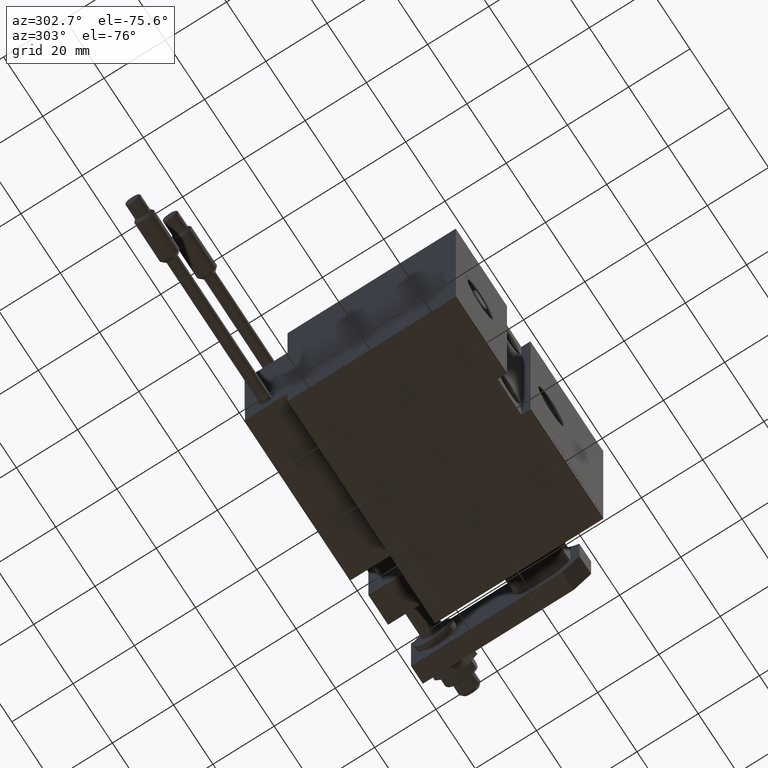
[diagram: clean part render]
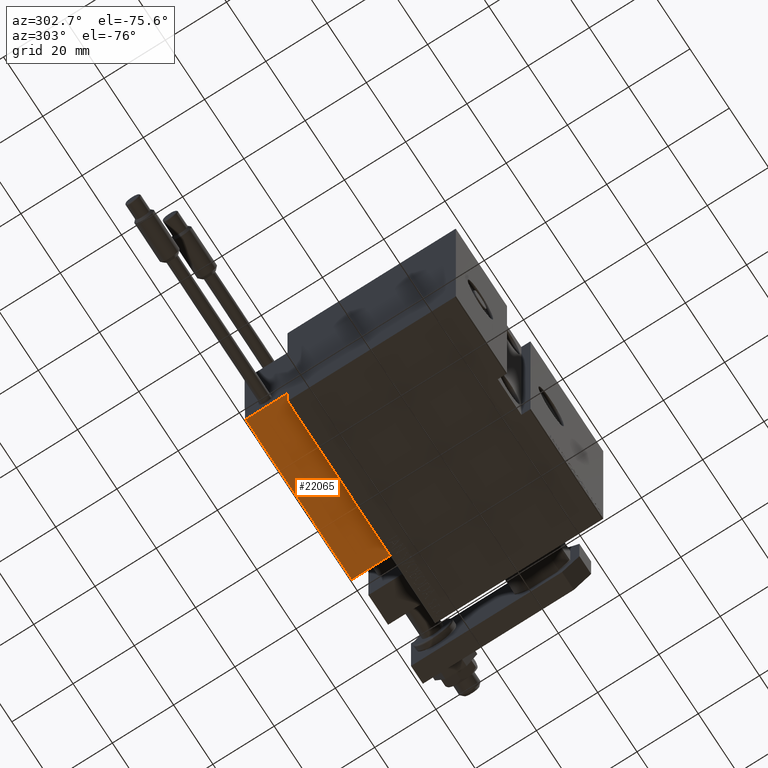
[diagram: same view with one face highlighted and labeled with its STEP entity id]
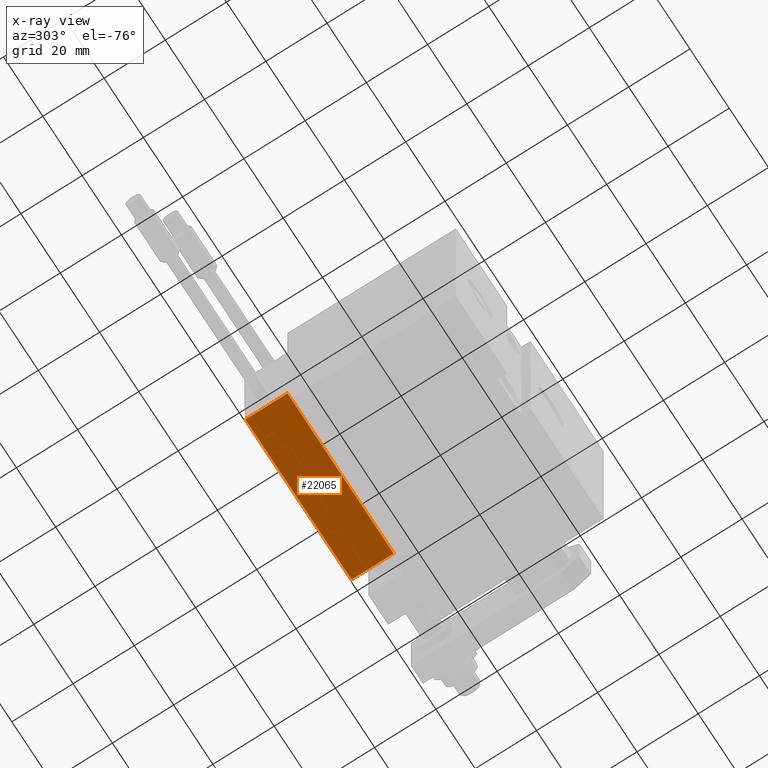
[diagram: x-ray of the same camera — body ghosted, the highlighted face saturated]
A machine part, auxiliary view. The second image highlights one B-rep face of the part: STEP entity #22065.
The next image is the same camera in x-ray: the body ghosted, the highlighted face saturated — about 0% of this face is hidden behind the body in this view.
In plain terms, the highlighted planar face has unit normal (-0, -0, 1).
Its self-contained STEP definition (entity closure, byte-faithful):
#136 = DIRECTION ( 'NONE',  ( -6.424901762877063495E-17, -1.000000000000000000, 0.000000000000000000 ) ) ;
#814 = VECTOR ( 'NONE', #38190, 1000.000000000000000 ) ;
#849 = AXIS2_PLACEMENT_3D ( 'NONE', #19512, #136, #11221 ) ;
#1461 = VECTOR ( 'NONE', #3197, 1000.000000000000000 ) ;
#2803 = LINE ( 'NONE', #33500, #12200 ) ;
#3197 = DIRECTION ( 'NONE',  ( -1.000000000000000000, 6.424901762877062263E-17, 0.000000000000000000 ) ) ;
#3980 = CARTESIAN_POINT ( 'NONE',  ( 27.00000000000006395, 20.00000000000001776, 14.00000000000000000 ) ) ;
#4417 = PLANE ( 'NONE',  #849 ) ;
#5011 = EDGE_LOOP ( 'NONE', ( #13096, #9640, #32415, #32382 ) ) ;
#7506 = LINE ( 'NONE', #3980, #814 ) ;
#8677 = CARTESIAN_POINT ( 'NONE',  ( 27.00000000000006395, 20.00000000000001776, 0.000000000000000000 ) ) ;
#9640 = ORIENTED_EDGE ( 'NONE', *, *, #24851, .T. ) ;
#11221 = DIRECTION ( 'NONE',  ( 1.000000000000000000, -6.424901762877063495E-17, 0.000000000000000000 ) ) ;
#12200 = VECTOR ( 'NONE', #14378, 1000.000000000000000 ) ;
#13096 = ORIENTED_EDGE ( 'NONE', *, *, #16543, .F. ) ;
#13455 = EDGE_CURVE ( 'NONE', #48639, #15101, #29850, .T. ) ;
#13456 = LINE ( 'NONE', #24761, #24072 ) ;
#14058 = CARTESIAN_POINT ( 'NONE',  ( -26.99999999999993605, 20.00000000000002132, 0.000000000000000000 ) ) ;
#14378 = DIRECTION ( 'NONE',  ( 1.000000000000000000, -6.424901762877063495E-17, -0.000000000000000000 ) ) ;
#15101 = VERTEX_POINT ( 'NONE', #14058 ) ;
#16543 = EDGE_CURVE ( 'NONE', #18103, #15101, #13456, .T. ) ;
#18103 = VERTEX_POINT ( 'NONE', #28866 ) ;
#19512 = CARTESIAN_POINT ( 'NONE',  ( 27.00000000000006395, 20.00000000000001776, 14.00000000000000000 ) ) ;
#20822 = EDGE_CURVE ( 'NONE', #35848, #48639, #7506, .T. ) ;
#22065 = ADVANCED_FACE ( 'NONE', ( #49724 ), #4417, .F. ) ;
#24072 = VECTOR ( 'NONE', #24514, 1000.000000000000000 ) ;
#24514 = DIRECTION ( 'NONE',  ( -0.000000000000000000, -0.000000000000000000, -1.000000000000000000 ) ) ;
#24761 = CARTESIAN_POINT ( 'NONE',  ( -26.99999999999993605, 20.00000000000002132, 14.00000000000000000 ) ) ;
#24851 = EDGE_CURVE ( 'NONE', #18103, #35848, #2803, .T. ) ;
#28866 = CARTESIAN_POINT ( 'NONE',  ( -26.99999999999993605, 20.00000000000002132, 13.70000000000000107 ) ) ;
#29850 = LINE ( 'NONE', #45470, #1461 ) ;
#32382 = ORIENTED_EDGE ( 'NONE', *, *, #13455, .T. ) ;
#32415 = ORIENTED_EDGE ( 'NONE', *, *, #20822, .T. ) ;
#33500 = CARTESIAN_POINT ( 'NONE',  ( 27.00000000000006395, 20.00000000000001776, 13.70000000000000107 ) ) ;
#35848 = VERTEX_POINT ( 'NONE', #41124 ) ;
#38190 = DIRECTION ( 'NONE',  ( -0.000000000000000000, -0.000000000000000000, -1.000000000000000000 ) ) ;
#41124 = CARTESIAN_POINT ( 'NONE',  ( 27.00000000000006395, 20.00000000000001776, 13.70000000000000107 ) ) ;
#45470 = CARTESIAN_POINT ( 'NONE',  ( 27.00000000000006395, 20.00000000000001776, 0.000000000000000000 ) ) ;
#48639 = VERTEX_POINT ( 'NONE', #8677 ) ;
#49724 = FACE_OUTER_BOUND ( 'NONE', #5011, .T. ) ;